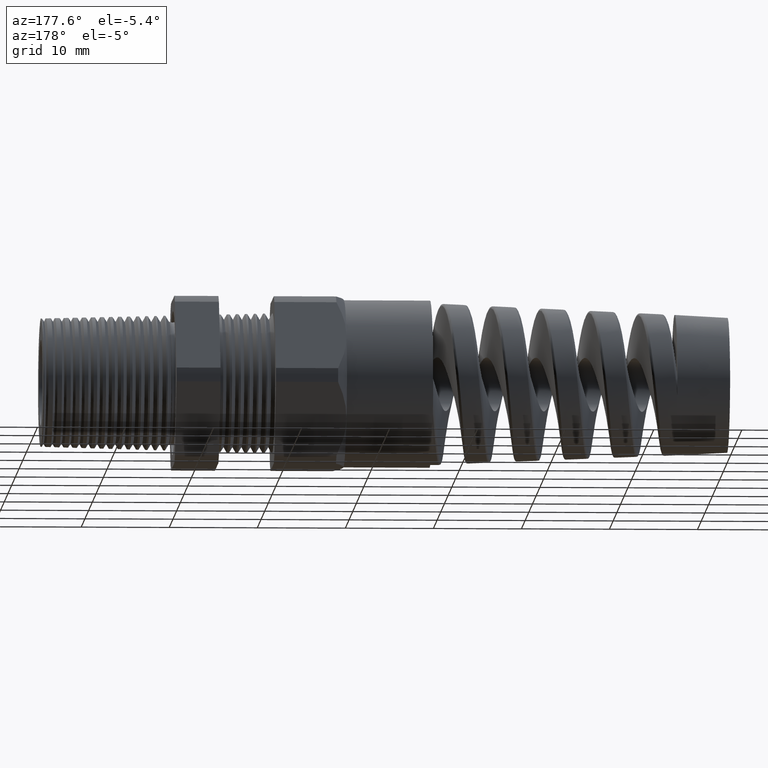
[diagram: clean part render]
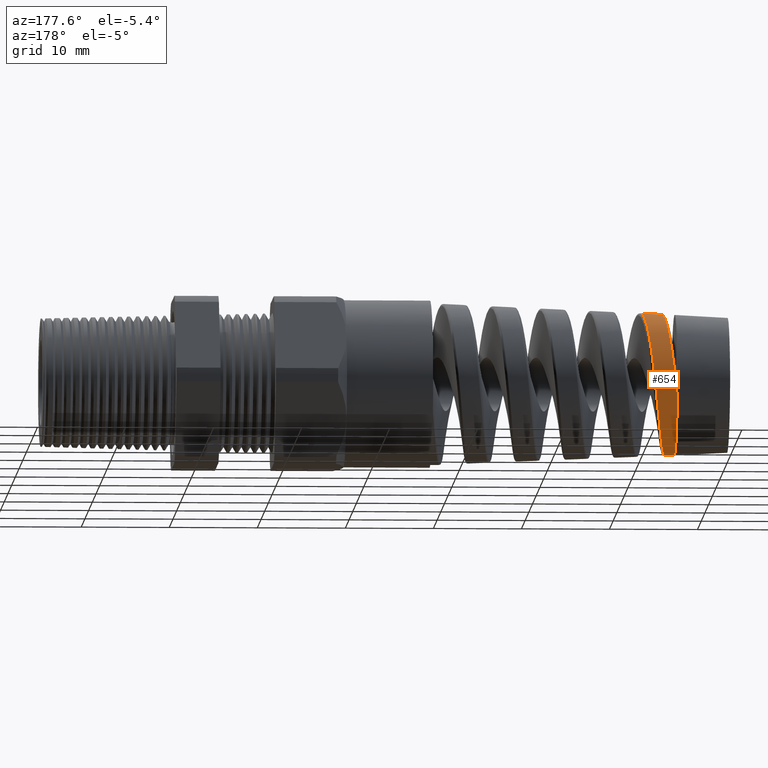
[diagram: same view with one face highlighted and labeled with its STEP entity id]
A machine part, auxiliary view. The second image highlights one B-rep face of the part: STEP entity #654.
In plain terms, the highlighted conical surface has half-angle 2.5 deg.
Its self-contained STEP definition (entity closure, byte-faithful):
#2 = CARTESIAN_POINT ( 'NONE',  ( -2.434729016264376000, 0.2771217184107808200, 0.1618231361013919000 ) ) ;
#4 = CARTESIAN_POINT ( 'NONE',  ( -2.436991750605036300, 0.2869425714761100800, 0.1434342085334687800 ) ) ;
#8 = CARTESIAN_POINT ( 'NONE',  ( -2.421031904053475800, 0.1944196031666994300, 0.2554078306964308600 ) ) ;
#11 = CARTESIAN_POINT ( 'NONE',  ( -2.423316030418464400, 0.2105970622675525900, 0.2421095648772281000 ) ) ;
#13 = CARTESIAN_POINT ( 'NONE',  ( -2.424452503893166800, 0.2183163421808294600, 0.2351019905673325500 ) ) ;
#15 = CARTESIAN_POINT ( 'NONE',  ( -2.441546038044306100, 0.3024607192783290200, 0.1047679472545342700 ) ) ;
#16 = CARTESIAN_POINT ( 'NONE',  ( -2.427859005117533700, 0.2403849780308027200, 0.2130245865486870600 ) ) ;
#17 = CARTESIAN_POINT ( 'NONE',  ( -2.430132484886108600, 0.2536926227094683500, 0.1968547580891875900 ) ) ;
#18 = CARTESIAN_POINT ( 'NONE',  ( -2.440405243003122700, 0.2989269832340817900, 0.1145928973675093000 ) ) ;
#19 = CARTESIAN_POINT ( 'NONE',  ( -2.419878838306876600, 0.1859150097908268100, 0.2617258196643253400 ) ) ;
#27 = CARTESIAN_POINT ( 'NONE',  ( -2.443842685127398400, 0.3085821912617486300, 0.08468584092810385600 ) ) ;
#31 = CARTESIAN_POINT ( 'NONE',  ( -2.444999472614949100, 0.3111647240098706600, 0.07441865912091849600 ) ) ;
#207 = ORIENTED_EDGE ( 'NONE', *, *, #212, .T. ) ;
#212 = EDGE_CURVE ( 'NONE', #215, #640, #9951, .T. ) ;
#213 = EDGE_CURVE ( 'NONE', #215, #725, #9942, .T. ) ;
#215 = VERTEX_POINT ( 'NONE', #9938 ) ;
#216 = ORIENTED_EDGE ( 'NONE', *, *, #213, .F. ) ;
#217 = EDGE_CURVE ( 'NONE', #648, #725, #9935, .T. ) ;
#509 = CARTESIAN_POINT ( 'NONE',  ( -2.471330503045383200, 0.2768944176040834500, -0.1579777624006189200 ) ) ;
#510 = CARTESIAN_POINT ( 'NONE',  ( -2.479357415156138600, 0.2334305962900797000, -0.2166000054032252200 ) ) ;
#512 = CARTESIAN_POINT ( 'NONE',  ( -2.489678759494421600, 0.1603437114283628200, -0.2751956358669401200 ) ) ;
#513 = CARTESIAN_POINT ( 'NONE',  ( -2.472471218066379700, 0.2715417688150469900, -0.1669126284462266200 ) ) ;
#515 = CARTESIAN_POINT ( 'NONE',  ( -2.475897583502078000, 0.2537900477399742100, -0.1925906278645519400 ) ) ;
#516 = CARTESIAN_POINT ( 'NONE',  ( -2.469039000426086700, 0.2867408265293898700, -0.1395383657381460700 ) ) ;
#517 = CARTESIAN_POINT ( 'NONE',  ( -2.467882070659825000, 0.2912550634815223000, -0.1299814975647520000 ) ) ;
#518 = CARTESIAN_POINT ( 'NONE',  ( -2.492006101117983300, 0.1415709224838862800, -0.2851972755063145200 ) ) ;
#519 = CARTESIAN_POINT ( 'NONE',  ( -2.474754593860902100, 0.2599895764089653100, -0.1842190779855962000 ) ) ;
#520 = CARTESIAN_POINT ( 'NONE',  ( -2.457580374349582100, 0.3168926418596389500, -0.03988655521909383700 ) ) ;
#521 = CARTESIAN_POINT ( 'NONE',  ( -2.464425791004212200, 0.3032897869805701300, -0.1008349245204388000 ) ) ;
#522 = CARTESIAN_POINT ( 'NONE',  ( -2.462152605404537700, 0.3092970014676819100, -0.08089040949785157600 ) ) ;
#524 = CARTESIAN_POINT ( 'NONE',  ( -2.458725452366384200, 0.3153642907198079300, -0.05023102463917417100 ) ) ;
#525 = CARTESIAN_POINT ( 'NONE',  ( -2.450695738659785400, 0.3193800906698878700, 0.02293355465511780900 ) ) ;
#527 = CARTESIAN_POINT ( 'NONE',  ( -2.454122934717468700, 0.3194308606674229300, -0.008402601084698790500 ) ) ;
#530 = CARTESIAN_POINT ( 'NONE',  ( -2.485098657404551900, 0.1950196696245389000, -0.2520659069603876100 ) ) ;
#531 = CARTESIAN_POINT ( 'NONE',  ( -2.448432148021393300, 0.3173162718451298400, 0.04364102435382168100 ) ) ;
#532 = CARTESIAN_POINT ( 'NONE',  ( -2.478195887669642200, 0.2405317806170680900, -0.2087608834294837600 ) ) ;
#533 = CARTESIAN_POINT ( 'NONE',  ( -2.455275915479819400, 0.3189315586448550100, -0.01894178570110661600 ) ) ;
#534 = CARTESIAN_POINT ( 'NONE',  ( -2.482821773722551800, 0.2111364217341187000, -0.2388757654443310600 ) ) ;
#536 = CARTESIAN_POINT ( 'NONE',  ( -2.508120453604180300, -3.361509424970615100E-015, -0.3170130086995602800 ) ) ;
#540 = CARTESIAN_POINT ( 'NONE',  ( -2.506973295566056400, 0.01040774781373071700, -0.3170630947011698900 ) ) ;
#543 = CARTESIAN_POINT ( 'NONE',  ( -2.498889546108180600, 0.08302211380263500900, -0.3070809314975361800 ) ) ;
#545 = CARTESIAN_POINT ( 'NONE',  ( -2.503515000376494500, 0.04171385810548044300, -0.3146342440416262100 ) ) ;
#547 = CARTESIAN_POINT ( 'NONE',  ( -2.502349558027460400, 0.05219909522254880700, -0.3131164697098698400 ) ) ;
#554 = CARTESIAN_POINT ( 'NONE',  ( -2.505825243540012800, 0.02083219229628246700, -0.3166019429865897800 ) ) ;
#555 = CARTESIAN_POINT ( 'NONE',  ( -2.496606539455858500, 0.1029507899659205100, -0.3010869549966751500 ) ) ;
#639 = ORIENTED_EDGE ( 'NONE', *, *, #649, .T. ) ;
#640 = VERTEX_POINT ( 'NONE', #10511 ) ;
#648 = VERTEX_POINT ( 'NONE', #10502 ) ;
#649 = EDGE_CURVE ( 'NONE', #652, #648, #10497, .T. ) ;
#652 = VERTEX_POINT ( 'NONE', #10489 ) ;
#653 = EDGE_CURVE ( 'NONE', #640, #652, #10486, .T. ) ;
#654 = ADVANCED_FACE ( 'NONE', ( #10488 ), #10487, .T. ) ;
#655 = ORIENTED_EDGE ( 'NONE', *, *, #653, .T. ) ;
#657 = EDGE_LOOP ( 'NONE', ( #655, #639, #8298, #216, #207 ) ) ;
#725 = VERTEX_POINT ( 'NONE', #10647 ) ;
#8298 = ORIENTED_EDGE ( 'NONE', *, *, #217, .T. ) ;
#9653 = CARTESIAN_POINT ( 'NONE',  ( -2.416453009263631400, 0.1597665984599259700, 0.2792228377019347300 ) ) ;
#9927 = CARTESIAN_POINT ( 'NONE',  ( -2.414199623615006700, 0.1414146596806210900, 0.2890516295904477200 ) ) ;
#9928 = CARTESIAN_POINT ( 'NONE',  ( -2.409660830602432300, 0.1029132989563283400, 0.3050985277095394400 ) ) ;
#9929 = CARTESIAN_POINT ( 'NONE',  ( -2.407354878473266800, 0.08256838213254381900, 0.3113259933891827600 ) ) ;
#9930 = CARTESIAN_POINT ( 'NONE',  ( -2.402812890439336900, 0.04166051832980080500, 0.3195830556263483700 ) ) ;
#9931 = CARTESIAN_POINT ( 'NONE',  ( -2.400562355558793400, 0.02095506875057702400, 0.3217090966777281200 ) ) ;
#9932 = CARTESIAN_POINT ( 'NONE',  ( -2.398287625644680300, -9.229786008424250600E-013, 0.3218084135305804300 ) ) ;
#9935 = B_SPLINE_CURVE_WITH_KNOTS ( 'NONE', 3,
 ( #9932, #9931, #9930, #9929, #9928, #9927, #9653, #19, #8, #11, #13, #16, #17, #2, #4, #18, #15, #27, #31, #531, #525, #527, #533, #520, #524, #522, #521, #517, #516, #509, #513, #519, #515, #532, #510, #534, #530, #512, #518, #555, #543, #547, #545, #554, #540, #536 ),
 .UNSPECIFIED., .F., .F.,
 ( 4, 2, 2, 2, 2, 2, 2, 2, 2, 2, 2, 2, 2, 2, 2, 2, 2, 2, 2, 2, 2, 2, 4 ),
 ( 0.2340297215052379900, 0.2356454536544476400, 0.2372611858036572900, 0.2388769179528669200, 0.2396847840274717600, 0.2404926501020765700, 0.2421083822512862200, 0.2437241144004958500, 0.2445319804751006600, 0.2453398465497055000, 0.2469555786989151300, 0.2477634447735199700, 0.2485713108481247800, 0.2501870429973344100, 0.2509949090719392200, 0.2518027751465440900, 0.2526106412211489000, 0.2534185072957537100, 0.2550342394449633400, 0.2566499715941730200, 0.2582657037433827000, 0.2590735698179875100, 0.2598814358925923300 ),
 .UNSPECIFIED. ) ;
#9938 = CARTESIAN_POINT ( 'NONE',  ( -2.553780000000000200, -3.857875854218868700E-017, -0.3150194698508069800 ) ) ;
#9939 = DIRECTION ( 'NONE',  ( 0.9990482215818576900, 0.0000000000000000000, -0.04361938736533628500 ) ) ;
#9940 = VECTOR ( 'NONE', #9939, 39.37007874015748100 ) ;
#9941 = CARTESIAN_POINT ( 'NONE',  ( -1.179999999999999900, 0.0000000000000000000, -0.3749999999999998900 ) ) ;
#9942 = LINE ( 'NONE', #9941, #9940 ) ;
#9943 = DIRECTION ( 'NONE',  ( 0.0000000000000000000, 0.0000000000000000000, -1.000000000000000000 ) ) ;
#9944 = DIRECTION ( 'NONE',  ( 1.000000000000000000, 0.0000000000000000000, 0.0000000000000000000 ) ) ;
#9945 = CARTESIAN_POINT ( 'NONE',  ( -2.553780000000000200, 0.0000000000000000000, 0.0000000000000000000 ) ) ;
#9946 = AXIS2_PLACEMENT_3D ( 'NONE', #9945, #9944, #9943 ) ;
#9951 = CIRCLE ( 'NONE', #9946, 0.3150194698511438200 ) ;
#10486 = B_SPLINE_CURVE_WITH_KNOTS ( 'NONE', 3,
 ( #10545, #10544, #10543, #10542, #10541, #10540, #10539, #10538, #10537, #10536, #10535, #10534, #10533, #10532, #10531, #10530, #10529, #10528, #10527, #10526, #10525, #10524, #10523, #10522, #10521, #10520, #10519, #10518 ),
 .UNSPECIFIED., .F., .F.,
 ( 4, 2, 2, 2, 2, 2, 2, 2, 2, 2, 2, 2, 2, 4 ),
 ( 0.0000000000000000000, 0.0009240331837616916200, 0.001848066367523383700, 0.003696132735046768200, 0.004620165918808461500, 0.005544199102570153400, 0.006468232286331846200, 0.007392265470093538200, 0.009240331837616924700, 0.01016436502137861100, 0.01108839820514030000, 0.01201243138890198900, 0.01293646457266367500, 0.01478453094018704700 ),
 .UNSPECIFIED. ) ;
#10487 = CONICAL_SURFACE ( 'NONE', #10517, 0.3749999999999998900, 0.04363323129985852100 ) ;
#10488 = FACE_OUTER_BOUND ( 'NONE', #657, .T. ) ;
#10489 = CARTESIAN_POINT ( 'NONE',  ( -2.489992229448166700, 9.273628673562433400E-017, 0.3178045040594687000 ) ) ;
#10494 = DIRECTION ( 'NONE',  ( 0.9990482215818576900, 5.341834311772757900E-018, 0.04361938736533628500 ) ) ;
#10495 = VECTOR ( 'NONE', #10494, 39.37007874015748100 ) ;
#10496 = CARTESIAN_POINT ( 'NONE',  ( -1.179999999999999900, 4.592425496802573000E-017, 0.3749999999999998900 ) ) ;
#10497 = LINE ( 'NONE', #10496, #10495 ) ;
#10502 = CARTESIAN_POINT ( 'NONE',  ( -2.398287625644680300, -9.229786008424250600E-013, 0.3218084135305804300 ) ) ;
#10511 = CARTESIAN_POINT ( 'NONE',  ( -2.553780000000000200, 0.3053292485003098500, -0.07753267953277336000 ) ) ;
#10514 = DIRECTION ( 'NONE',  ( 0.0000000000000000000, 0.0000000000000000000, -1.000000000000000000 ) ) ;
#10515 = DIRECTION ( 'NONE',  ( 1.000000000000000000, 0.0000000000000000000, 0.0000000000000000000 ) ) ;
#10516 = CARTESIAN_POINT ( 'NONE',  ( -1.179999999999999900, 0.0000000000000000000, 0.0000000000000000000 ) ) ;
#10517 = AXIS2_PLACEMENT_3D ( 'NONE', #10516, #10515, #10514 ) ;
#10518 = CARTESIAN_POINT ( 'NONE',  ( -2.489992229448166700, 9.273628673562433400E-017, 0.3178045040594687000 ) ) ;
#10519 = CARTESIAN_POINT ( 'NONE',  ( -2.492641410709820700, 0.02400704635837972900, 0.3176888383076493200 ) ) ;
#10520 = CARTESIAN_POINT ( 'NONE',  ( -2.495252328046413800, 0.04770754715392686700, 0.3148885120225350400 ) ) ;
#10521 = CARTESIAN_POINT ( 'NONE',  ( -2.499221520659359500, 0.08278499205426720400, 0.3066506751184228100 ) ) ;
#10522 = CARTESIAN_POINT ( 'NONE',  ( -2.500559360647135200, 0.09444534197959932000, 0.3032009318441747400 ) ) ;
#10523 = CARTESIAN_POINT ( 'NONE',  ( -2.503207742040085100, 0.1170397282980935600, 0.2950916023275114200 ) ) ;
#10524 = CARTESIAN_POINT ( 'NONE',  ( -2.504525341315997800, 0.1280378737600635100, 0.2904228749415615500 ) ) ;
#10525 = CARTESIAN_POINT ( 'NONE',  ( -2.507165148932204900, 0.1494445654621742400, 0.2798792002782772800 ) ) ;
#10526 = CARTESIAN_POINT ( 'NONE',  ( -2.508487320154244600, 0.1598531231926198800, 0.2740042671285961600 ) ) ;
#10527 = CARTESIAN_POINT ( 'NONE',  ( -2.511152291154715500, 0.1800668535636041600, 0.2610240079428743400 ) ) ;
#10528 = CARTESIAN_POINT ( 'NONE',  ( -2.512500636251046200, 0.1899062160638340400, 0.2538812042606919400 ) ) ;
#10529 = CARTESIAN_POINT ( 'NONE',  ( -2.516498798688729700, 0.2177876347279658900, 0.2311060770175752700 ) ) ;
#10530 = CARTESIAN_POINT ( 'NONE',  ( -2.519125067802648700, 0.2344480702608238700, 0.2140194317796857700 ) ) ;
#10531 = CARTESIAN_POINT ( 'NONE',  ( -2.523111212111766500, 0.2565262964272799800, 0.1855297833550901600 ) ) ;
#10532 = CARTESIAN_POINT ( 'NONE',  ( -2.524453111611066400, 0.2634125603397719500, 0.1755090329626866300 ) ) ;
#10533 = CARTESIAN_POINT ( 'NONE',  ( -2.527106857511919500, 0.2758531674464134200, 0.1549882086553318100 ) ) ;
#10534 = CARTESIAN_POINT ( 'NONE',  ( -2.528426348136960700, 0.2814540965886570000, 0.1444364022982113100 ) ) ;
#10535 = CARTESIAN_POINT ( 'NONE',  ( -2.531069550156793000, 0.2914361276325260800, 0.1227612099823875000 ) ) ;
#10536 = CARTESIAN_POINT ( 'NONE',  ( -2.532393222829185200, 0.2958172559866677500, 0.1116378316683111600 ) ) ;
#10537 = CARTESIAN_POINT ( 'NONE',  ( -2.535062824799185300, 0.3033318871160488000, 0.08880867584954117700 ) ) ;
#10538 = CARTESIAN_POINT ( 'NONE',  ( -2.536413109753987700, 0.3064649640709235500, 0.07706276514136042900 ) ) ;
#10539 = CARTESIAN_POINT ( 'NONE',  ( -2.540421110940569900, 0.3137380799645705900, 0.04182094789159067300 ) ) ;
#10540 = CARTESIAN_POINT ( 'NONE',  ( -2.543068214586391700, 0.3158864236203858800, 0.01805398653981800700 ) ) ;
#10541 = CARTESIAN_POINT ( 'NONE',  ( -2.547076987491673400, 0.3150273936374683400, -0.01799968547810880700 ) ) ;
#10542 = CARTESIAN_POINT ( 'NONE',  ( -2.548423890202172100, 0.3140437826651894000, -0.03010802715702886100 ) ) ;
#10543 = CARTESIAN_POINT ( 'NONE',  ( -2.551100391647418900, 0.3107115117021649300, -0.05398778354776705100 ) ) ;
#10544 = CARTESIAN_POINT ( 'NONE',  ( -2.552436364807206400, 0.3083647884051692300, -0.06581686238694135800 ) ) ;
#10545 = CARTESIAN_POINT ( 'NONE',  ( -2.553780000000000200, 0.3053292485003098500, -0.07753267953277336000 ) ) ;
#10647 = CARTESIAN_POINT ( 'NONE',  ( -2.508120453604180300, -3.361509424970615100E-015, -0.3170130086995602800 ) ) ;